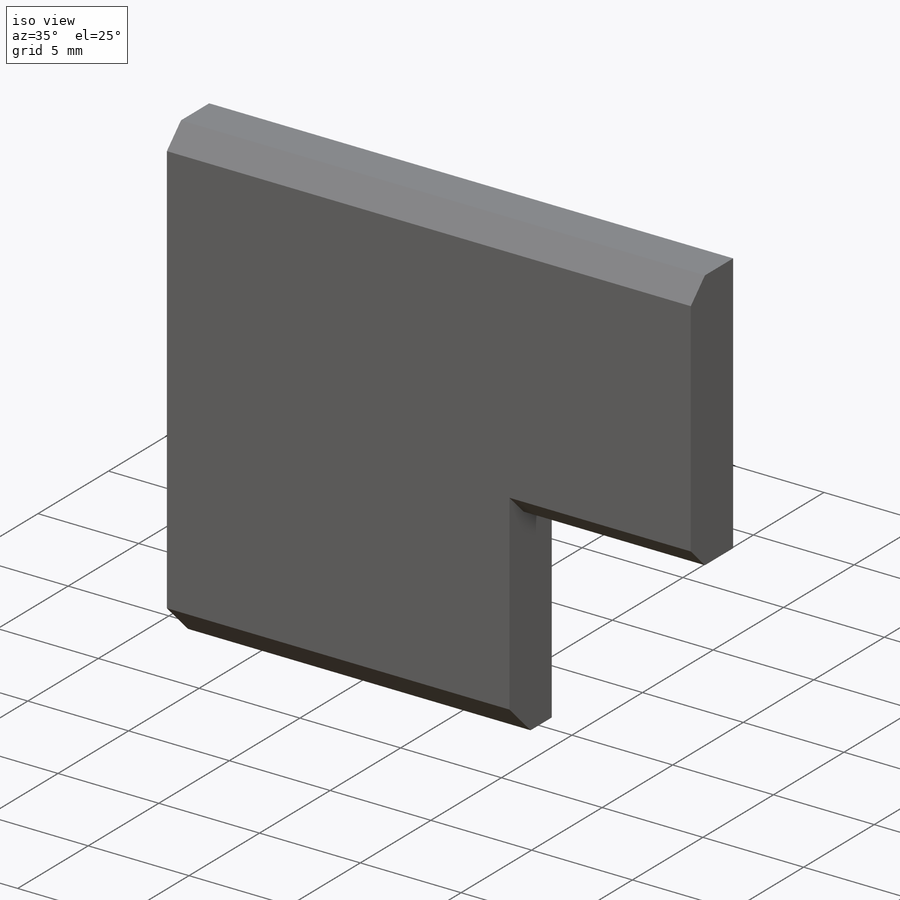
[diagram: iso view]
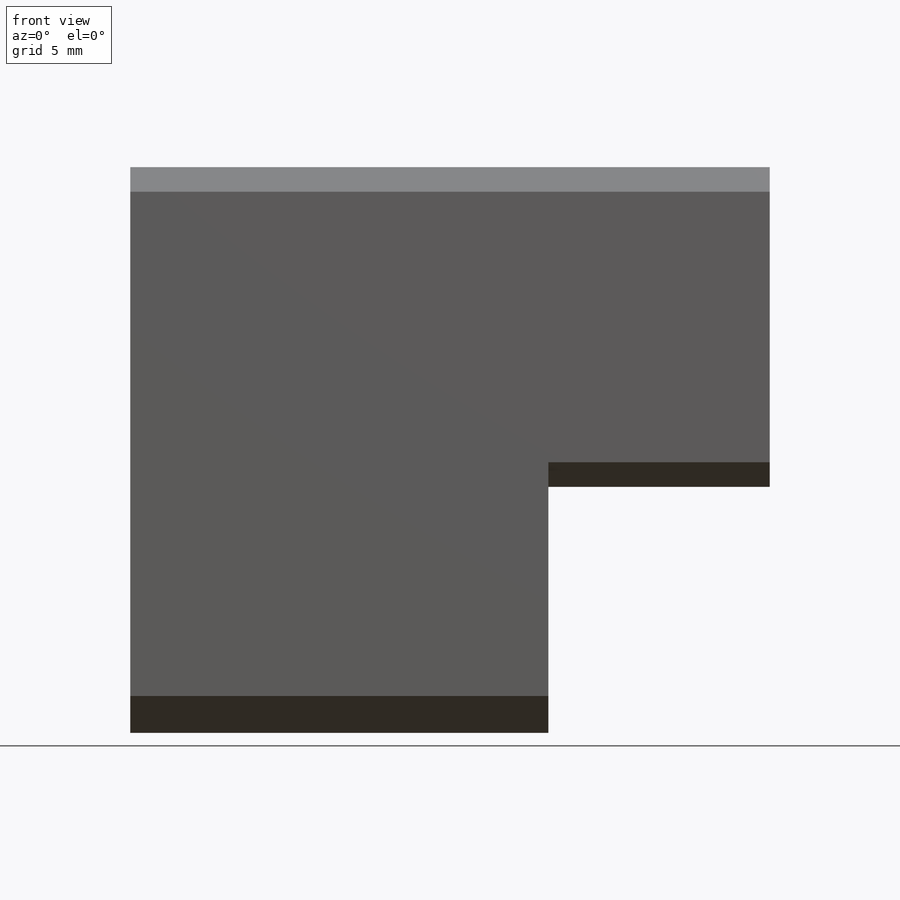
[diagram: front view]
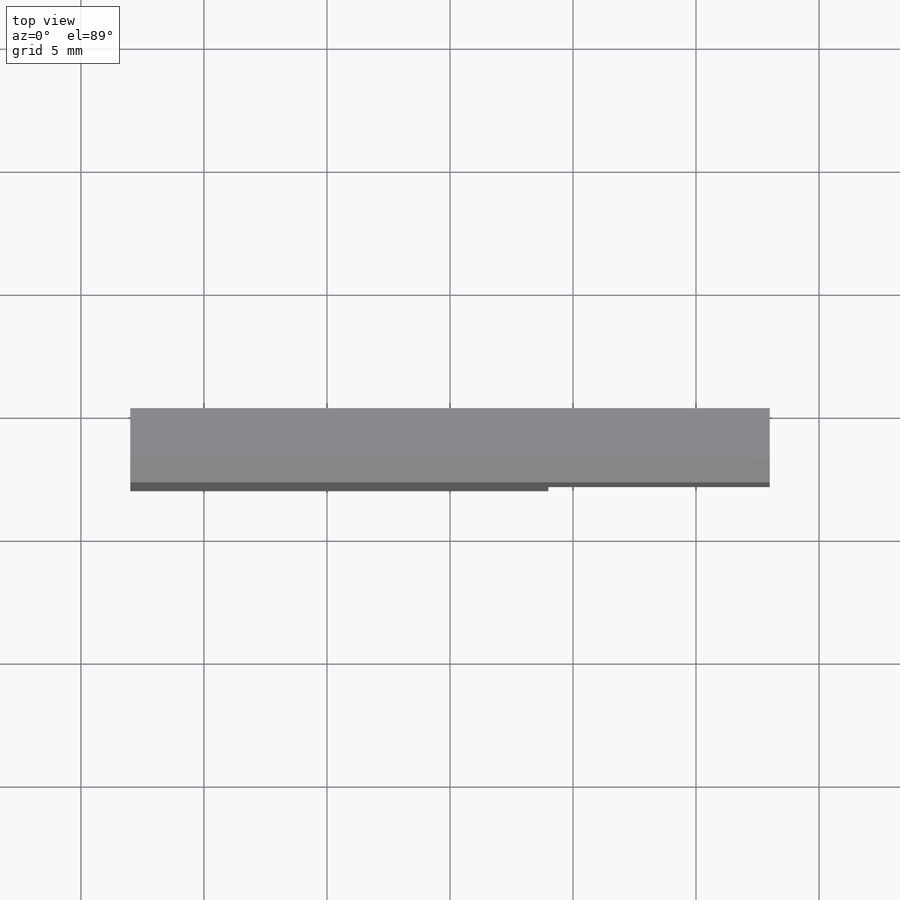
[diagram: top view]
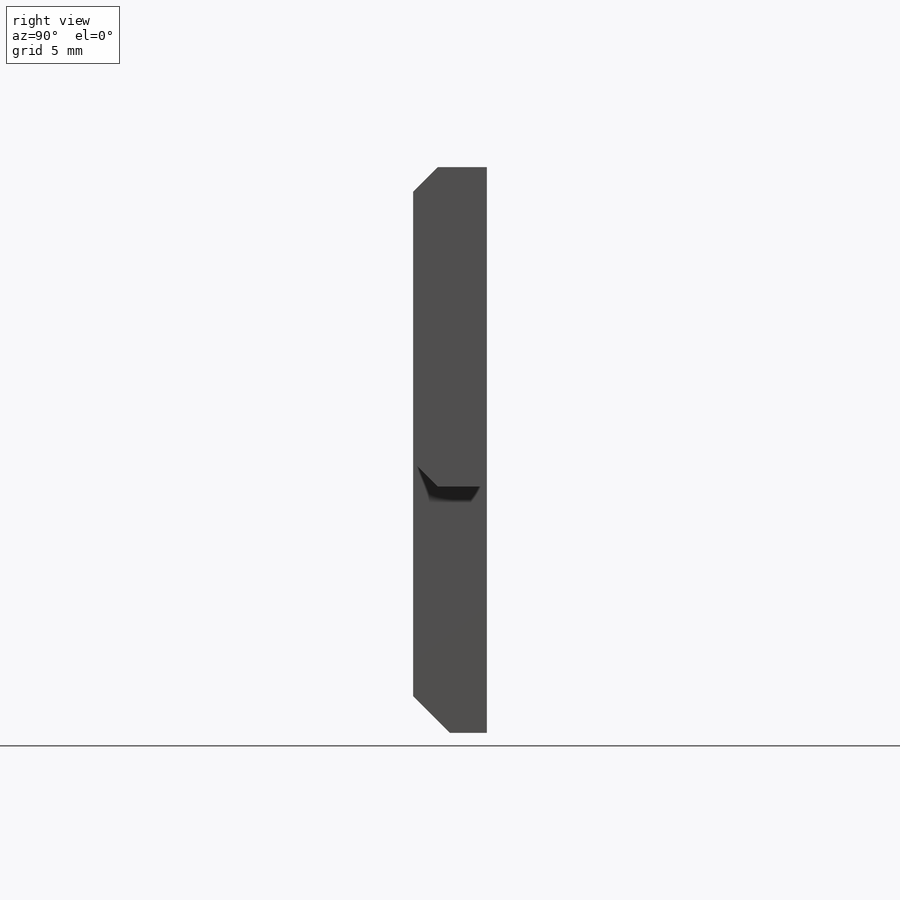
[diagram: right view]
SOLIDWORKS PART (.sldprt)
format: sldprt  version: not decoded by parser v0  size: 148,480 bytes
history: native  units: mm
features: sketch x2, chamfer x2, material x1, extrude x1, cut_extrude x1 (+14 scaffold rows collapsed)
feature tree (21):
  scaffold x14  (default folders/planes/origin — collapsed)
  material  "Стекло"
  sketch  "Эскиз1"  dims[D1=26.0mm D2=23.0mm D3=13.0mm D4=13.0mm]
  extrude  "Вытянуть1"  Depth=3mm
  chamfer  "Фаска1"  Distance=1.5mm Angle=45deg
  sketch  "Эскиз2"  dims[D1=10.0mm D2=9.0mm]
  cut_extrude  "Вырез-Вытянуть1"  Depth=0mm Material_Int=0mm Material_Ext=0mm Surface=0mm
  chamfer  "Фаска2"  Distance=1mm Angle=45deg
decode coverage: 6 of 6 modeling features carry decoded parameters
note: suppression state not decoded; provenance and decode notes live in map.json
